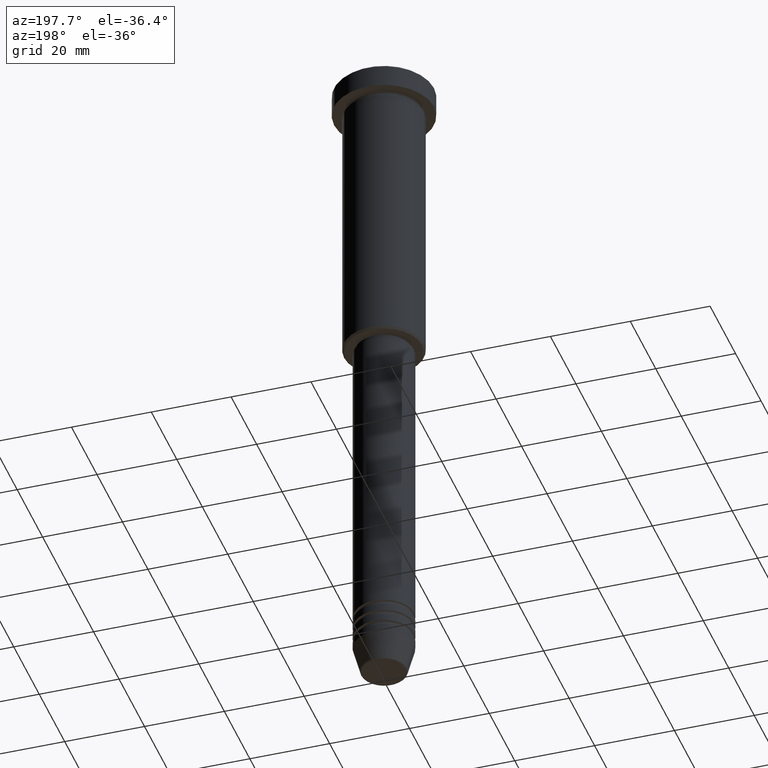
[diagram: clean part render]
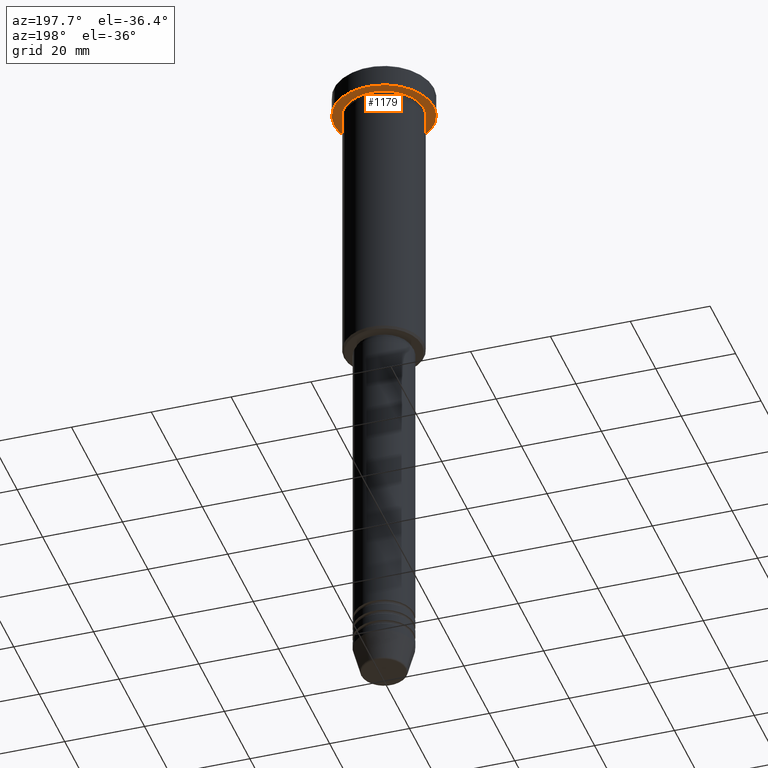
[diagram: same view with one face highlighted and labeled with its STEP entity id]
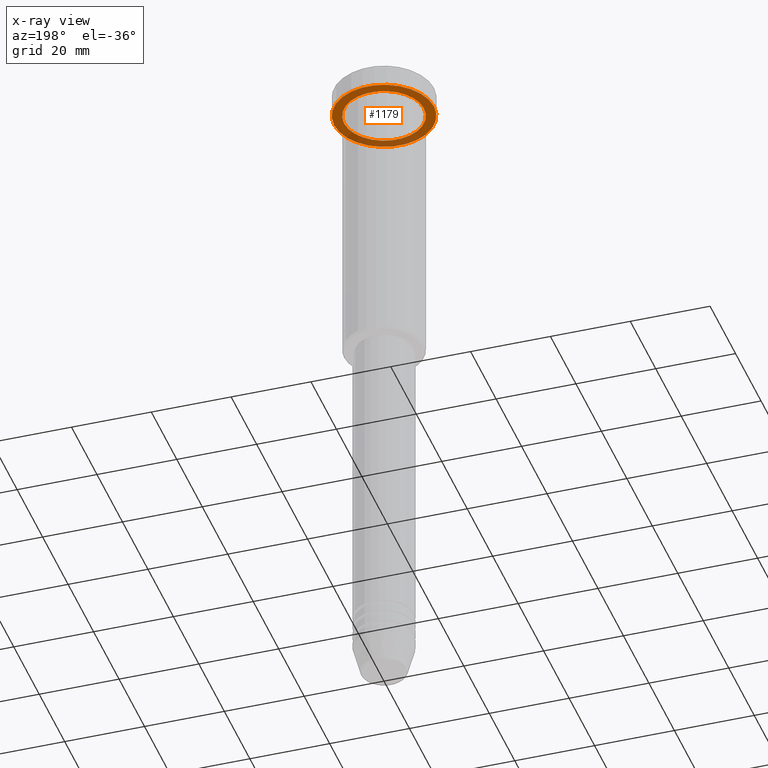
[diagram: x-ray of the same camera — body ghosted, the highlighted face saturated]
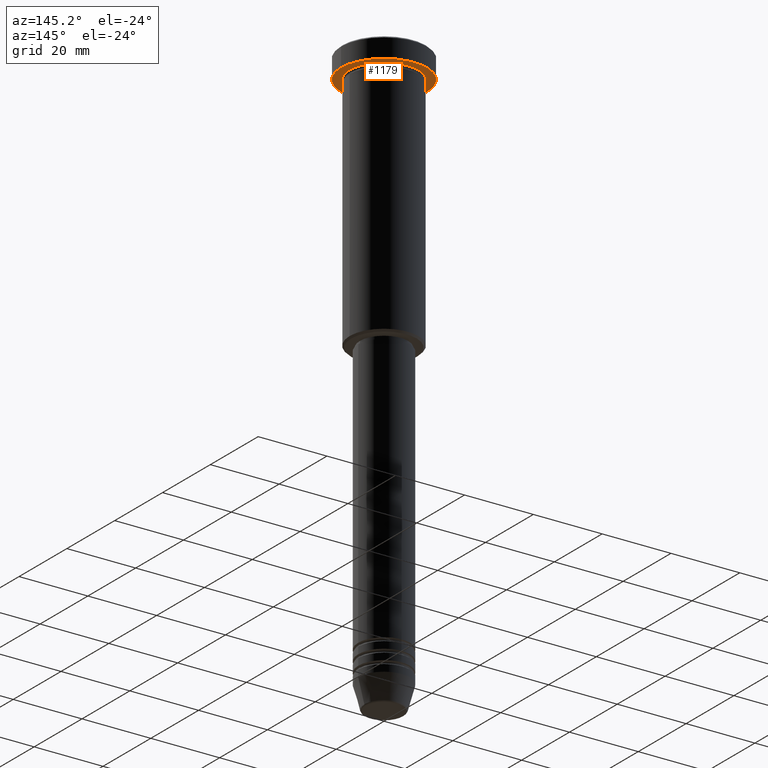
[diagram: same view with one face highlighted and labeled with its STEP entity id]
A machine part, auxiliary view. The second image highlights one B-rep face of the part: STEP entity #1179.
The next image is the same camera in x-ray: the body ghosted, the highlighted face saturated — about 26% of this face is hidden behind the body in this view.
A second angle (auxiliary view) of the same face is appended — the face is thin or edge-on in the first view.
In plain terms, the highlighted planar face has unit normal (0, 0, -1).
Its self-contained STEP definition (entity closure, byte-faithful):
#7 = DIRECTION ( 'NONE',  ( 1.000000000000000000, 0.000000000000000000, 0.000000000000000000 ) ) ;
#24 = EDGE_CURVE ( 'NONE', #639, #429, #39, .T. ) ;
#39 = CIRCLE ( 'NONE', #118, 10.00000000000000000 ) ;
#57 = EDGE_CURVE ( 'NONE', #429, #639, #1014, .T. ) ;
#74 = ORIENTED_EDGE ( 'NONE', *, *, #426, .F. ) ;
#113 = CARTESIAN_POINT ( 'NONE',  ( 0.000000000000000000, 12.50000000000000000, -5.999999999999996447 ) ) ;
#118 = AXIS2_PLACEMENT_3D ( 'NONE', #718, #1146, #795 ) ;
#140 = AXIS2_PLACEMENT_3D ( 'NONE', #245, #690, #430 ) ;
#245 = CARTESIAN_POINT ( 'NONE',  ( 0.000000000000000000, 0.000000000000000000, -5.999999999999996447 ) ) ;
#253 = CARTESIAN_POINT ( 'NONE',  ( 10.00000000000000000, 1.224646799147353256E-15, -5.999999999999996447 ) ) ;
#308 = CIRCLE ( 'NONE', #882, 12.50000000000000000 ) ;
#365 = CARTESIAN_POINT ( 'NONE',  ( 0.000000000000000000, 0.000000000000000000, -5.999999999999996447 ) ) ;
#391 = ORIENTED_EDGE ( 'NONE', *, *, #57, .T. ) ;
#399 = DIRECTION ( 'NONE',  ( -1.000000000000000000, 0.000000000000000000, 0.000000000000000000 ) ) ;
#426 = EDGE_CURVE ( 'NONE', #1056, #1176, #308, .T. ) ;
#429 = VERTEX_POINT ( 'NONE', #733 ) ;
#430 = DIRECTION ( 'NONE',  ( 1.000000000000000000, 0.000000000000000000, 0.000000000000000000 ) ) ;
#474 = PLANE ( 'NONE',  #704 ) ;
#491 = EDGE_LOOP ( 'NONE', ( #391, #950 ) ) ;
#555 = CIRCLE ( 'NONE', #140, 12.50000000000000000 ) ;
#558 = DIRECTION ( 'NONE',  ( 0.000000000000000000, 0.000000000000000000, -1.000000000000000000 ) ) ;
#639 = VERTEX_POINT ( 'NONE', #253 ) ;
#648 = EDGE_LOOP ( 'NONE', ( #679, #74 ) ) ;
#649 = DIRECTION ( 'NONE',  ( -1.000000000000000000, 0.000000000000000000, -0.000000000000000000 ) ) ;
#664 = CARTESIAN_POINT ( 'NONE',  ( 0.000000000000000000, 0.000000000000000000, -5.999999999999996447 ) ) ;
#679 = ORIENTED_EDGE ( 'NONE', *, *, #1116, .F. ) ;
#690 = DIRECTION ( 'NONE',  ( -0.000000000000000000, -0.000000000000000000, 1.000000000000000000 ) ) ;
#704 = AXIS2_PLACEMENT_3D ( 'NONE', #113, #558, #649 ) ;
#718 = CARTESIAN_POINT ( 'NONE',  ( 0.000000000000000000, 0.000000000000000000, -5.999999999999996447 ) ) ;
#733 = CARTESIAN_POINT ( 'NONE',  ( -10.00000000000000000, 0.000000000000000000, -5.999999999999996447 ) ) ;
#784 = AXIS2_PLACEMENT_3D ( 'NONE', #664, #1037, #399 ) ;
#795 = DIRECTION ( 'NONE',  ( -1.000000000000000000, 0.000000000000000000, 0.000000000000000000 ) ) ;
#824 = DIRECTION ( 'NONE',  ( -0.000000000000000000, -0.000000000000000000, 1.000000000000000000 ) ) ;
#826 = FACE_OUTER_BOUND ( 'NONE', #648, .T. ) ;
#882 = AXIS2_PLACEMENT_3D ( 'NONE', #365, #824, #7 ) ;
#909 = FACE_BOUND ( 'NONE', #491, .T. ) ;
#924 = CARTESIAN_POINT ( 'NONE',  ( 12.50000000000000000, 0.000000000000000000, -5.999999999999996447 ) ) ;
#950 = ORIENTED_EDGE ( 'NONE', *, *, #24, .T. ) ;
#1014 = CIRCLE ( 'NONE', #784, 10.00000000000000000 ) ;
#1037 = DIRECTION ( 'NONE',  ( -0.000000000000000000, -0.000000000000000000, 1.000000000000000000 ) ) ;
#1056 = VERTEX_POINT ( 'NONE', #1060 ) ;
#1060 = CARTESIAN_POINT ( 'NONE',  ( -12.50000000000000000, 1.530808498934191521E-15, -5.999999999999996447 ) ) ;
#1116 = EDGE_CURVE ( 'NONE', #1176, #1056, #555, .T. ) ;
#1146 = DIRECTION ( 'NONE',  ( -0.000000000000000000, -0.000000000000000000, 1.000000000000000000 ) ) ;
#1176 = VERTEX_POINT ( 'NONE', #924 ) ;
#1179 = ADVANCED_FACE ( 'NONE', ( #909, #826 ), #474, .T. ) ;